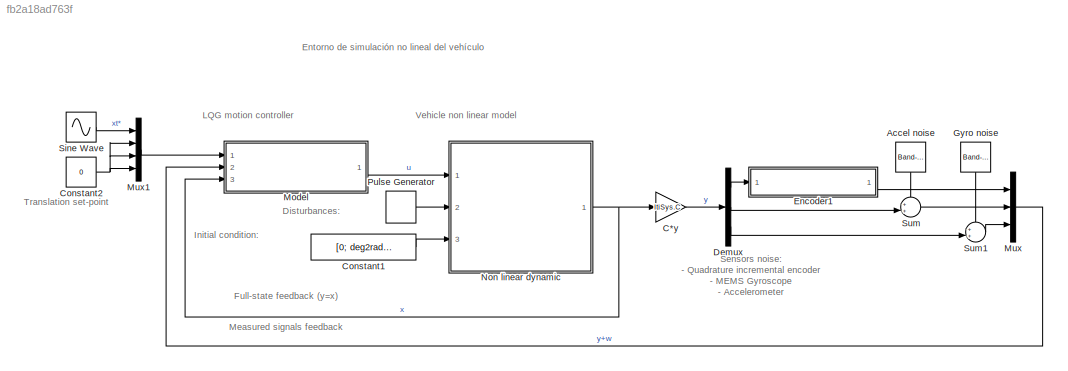
MODEL slx_fb2a18ad763f
KIND model
CONFIG AbsTol = auto
CONFIG EnableMultiTasking = off
CONFIG FixedStep = auto
CONFIG MaxStep = 1e-4
CONFIG MinStep = auto
CONFIG RelTol = 1e-3
CONFIG SampleTimeConstraint = Unconstrained
CONFIG SolverName = VariableStepAuto
CONFIG StartTime = 0.0
CONFIG StopTime = 16
BLOCK [Reference] Accel noise  REF=simulink/Sources/Band-Limited
White Noise
  NameLocation = top
  Ports = [0, 1]
  SourceBlock = simulink/Sources/Band-Limited\nWhite Noise
  SourceProductBaseCode = SL
  SourceType = Band-Limited White Noise.
BLOCK [Gain] C*y
  Gain = ltiSys.C
  Multiplication = Matrix(K*u)
BLOCK [Constant] Constant1
  Value = [0; deg2rad(0); 0; 0]
BLOCK [Constant] Constant2
  Value = 0
BLOCK [Demux] Demux
  Outputs = 3
  Ports = [1, 3]
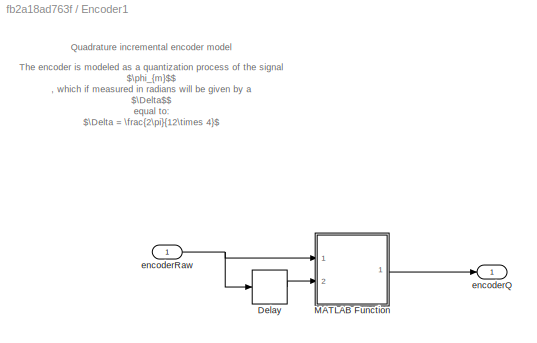
BLOCK [SubSystem] Encoder1
  NameLocation = top
  Ports = [1, 1]
  RequestExecContextInheritance = off
BLOCK [Delay] Encoder1/Delay
  DelayLength = 1
  InputPortMap = u0
  Ports = [1, 1]
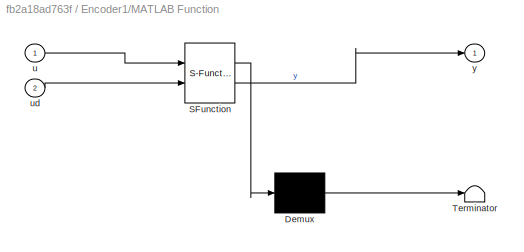
BLOCK [SubSystem] Encoder1/MATLAB Function
  ErrorFcn = Stateflow.Translate.translate
  PermitHierarchicalResolution = ExplicitOnly
  Ports = [2, 1]
  RequestExecContextInheritance = off
  SFBlockType = MATLAB Function
  TreatAsAtomicUnit = on
BLOCK [Demux] Encoder1/MATLAB Function/ Demux 
  Outputs = 1
  Ports = [1, 1]
BLOCK [S-Function] Encoder1/MATLAB Function/ SFunction 
  EnableBusSupport = on
  FunctionName = sf_sfun
  Parameters = QuadratureEncoder
  PortCounts = [2 2]
  Ports = [2, 2]
  SFcnIsStateOwnerBlock = off
  SFunctionDeploymentMode = off
  Tag = Stateflow S-Function 4
BLOCK [Terminator] Encoder1/MATLAB Function/ Terminator 
BLOCK [Inport] Encoder1/MATLAB Function/u
BLOCK [Inport] Encoder1/MATLAB Function/ud
  Port = 2
BLOCK [Outport] Encoder1/MATLAB Function/y
BLOCK [Outport] Encoder1/encoderQ
BLOCK [Inport] Encoder1/encoderRaw
BLOCK [Reference] Gyro noise  REF=simulink/Sources/Band-Limited
White Noise
  NameLocation = top
  Ports = [0, 1]
  SourceBlock = simulink/Sources/Band-Limited\nWhite Noise
  SourceProductBaseCode = SL
  SourceType = Band-Limited White Noise.
BLOCK [ModelReference] Model
  ModelNameDialog = MotionController.slx
  ModelReferenceVersion = 1.31
  Ports = [3, 1]
BLOCK [Mux] Mux
  DisplayOption = bar
  Inputs = 3
  Ports = [3, 1]
BLOCK [Mux] Mux1
  DisplayOption = bar
  Ports = [4, 1]
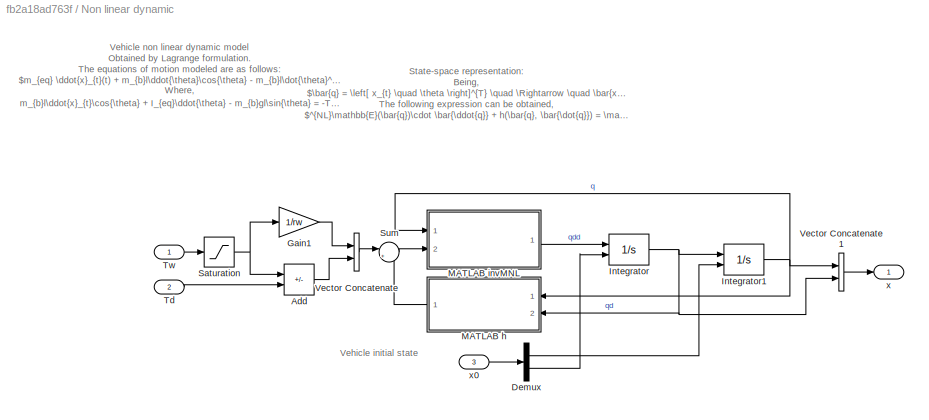
BLOCK [SubSystem] Non linear dynamic
  Ports = [3, 1]
  RequestExecContextInheritance = off
BLOCK [Sum] Non linear dynamic/Add
  IconShape = rectangular
  Inputs = -+
  Ports = [2, 1]
BLOCK [Demux] Non linear dynamic/Demux
  Outputs = 2
  Ports = [1, 2]
BLOCK [Gain] Non linear dynamic/Gain1
  Gain = 1/rw
BLOCK [Integrator] Non linear dynamic/Integrator
  InitialCondition = x0(3:4)
  InitialConditionSource = external
  Ports = [2, 1]
BLOCK [Integrator] Non linear dynamic/Integrator1
  InitialCondition = x0(1:2)
  InitialConditionSource = external
  Ports = [2, 1]
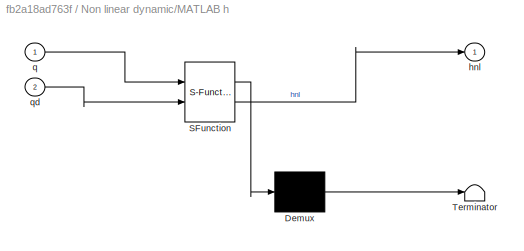
BLOCK [SubSystem] Non linear dynamic/MATLAB h
  ErrorFcn = Stateflow.Translate.translate
  PermitHierarchicalResolution = ExplicitOnly
  Ports = [2, 1]
  RequestExecContextInheritance = off
  SFBlockType = MATLAB Function
  TreatAsAtomicUnit = on
BLOCK [Demux] Non linear dynamic/MATLAB h/ Demux 
  Outputs = 1
  Ports = [1, 1]
BLOCK [S-Function] Non linear dynamic/MATLAB h/ SFunction 
  EnableBusSupport = on
  FunctionName = sf_sfun
  Parameters = bw,g,l,mb,rw
  PortCounts = [2 2]
  Ports = [2, 2]
  SFcnIsStateOwnerBlock = off
  SFunctionDeploymentMode = off
  Tag = Stateflow S-Function 2
BLOCK [Terminator] Non linear dynamic/MATLAB h/ Terminator 
BLOCK [Outport] Non linear dynamic/MATLAB h/hnl
BLOCK [Inport] Non linear dynamic/MATLAB h/q
BLOCK [Inport] Non linear dynamic/MATLAB h/qd
  Port = 2
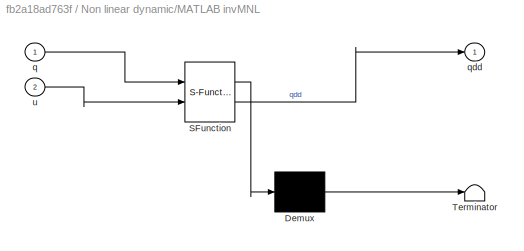
BLOCK [SubSystem] Non linear dynamic/MATLAB invMNL
  ErrorFcn = Stateflow.Translate.translate
  PermitHierarchicalResolution = ExplicitOnly
  Ports = [2, 1]
  RequestExecContextInheritance = off
  SFBlockType = MATLAB Function
  TreatAsAtomicUnit = on
BLOCK [Demux] Non linear dynamic/MATLAB invMNL/ Demux 
  Outputs = 1
  Ports = [1, 1]
BLOCK [S-Function] Non linear dynamic/MATLAB invMNL/ SFunction 
  EnableBusSupport = on
  FunctionName = sf_sfun
  Parameters = Ib,Iw,l,mb,mw,rw
  PortCounts = [2 2]
  Ports = [2, 2]
  SFcnIsStateOwnerBlock = off
  SFunctionDeploymentMode = off
  Tag = Stateflow S-Function 1
BLOCK [Terminator] Non linear dynamic/MATLAB invMNL/ Terminator 
BLOCK [Inport] Non linear dynamic/MATLAB invMNL/q
BLOCK [Outport] Non linear dynamic/MATLAB invMNL/qdd
BLOCK [Inport] Non linear dynamic/MATLAB invMNL/u
  Port = 2
BLOCK [Saturate] Non linear dynamic/Saturation
  LinearizeAsGain = off
  LowerLimit = -2*MotorParameters.maxTorque
  UpperLimit = 2*MotorParameters.maxTorque
BLOCK [Sum] Non linear dynamic/Sum
  Inputs = |+-
  Ports = [2, 1]
BLOCK [Inport] Non linear dynamic/Td
  Port = 2
BLOCK [Inport] Non linear dynamic/Tw
BLOCK [Concatenate] Non linear dynamic/Vector Concatenate
  Ports = [2, 1]
BLOCK [Concatenate] Non linear dynamic/Vector Concatenate1
  Ports = [2, 1]
BLOCK [Outport] Non linear dynamic/x
BLOCK [Inport] Non linear dynamic/x0
  Port = 3
  PortDimensions = [4, 1]
BLOCK [DiscretePulseGenerator] Pulse Generator
  Amplitude = 0
  Period = 20
  Ports = [0, 1]
  PulseType = Time based
  PulseWidth = 0.5
BLOCK [Sin] Sine Wave
  Amplitude = 0.5
  Frequency = 2*pi/15
  Ports = [0, 1]
  SampleTime = 0
BLOCK [Sum] Sum
  Inputs = ++|
  Ports = [2, 1]
BLOCK [Sum] Sum1
  Inputs = ++|
  Ports = [2, 1]
ANNOTATION (root): Disturbances :
ANNOTATION (root): Initial condition:
ANNOTATION (root): LQG motion controller
ANNOTATION (root): Sensors noise: - Quadrature incremental encoder - MEMS Gyroscope - Accelerometer
ANNOTATION (root): Translation set-point
ANNOTATION (root): Vehicle non linear model
ANNOTATION (root): Entorno de simulación no lineal del vehículo
ANNOTATION (root): Full-state feedback (y=x)
ANNOTATION (root): Measured signals feedback
ANNOTATION Encoder1: Quadrature incremental encoder model
ANNOTATION Encoder1: The encoder is modeled as a quantization process of the signal $\phi_{m}$$ , which if measured in radians will be given by a $\Delta$$ equal to: $\Delta = \frac{2\pi}{12\times 4}$ The following quantization function Q is proposed: $Q(\phi_{m}) = \begin{cases} \Delta \cdot \lceil \frac{\phi_{m}}{\Delta} \rceil & \quad \text{si } \dot{\phi}_{m} < 0 \\ \phi_{m} & \quad \text{si } \dot{\phi}_{m} = 0 \...<+105ch>
ANNOTATION Non linear dynamic: Vehicle initial state
ANNOTATION Non linear dynamic: Vehicle non linear dynamic model Obtained by Lagrange formulation. The equations of motion modeled are as follows: $m_{eq} \ddot{x}_{t}(t) + m_{b}l\ddot{\theta}\cos{\theta} - m_{b}l\dot{\theta}^{2}\sin{\theta} + \frac{2b_{w}}{r_{w}^{2}}\dot{x}_{t} = \frac{1}{r_{w}}T_{w}\\ m_{b}l\ddot{x}_{t}\cos{\theta} + I_{eq}\ddot{\theta} - m_{b}gl\sin{\theta} = -T_{w} + T_{d}$ Where, $m_{eq} = m_{b} + 2m_{w} + ...<+64ch>
ANNOTATION Non linear dynamic: State-space representation: Being, $\bar{q} = \left[ x_{t} \quad \theta \right]^{T} \quad \Rightarrow \quad \bar{x} = \left[ \bar{q} \quad \bar{\dot{q}} \right]^{T} = \left[ x_{t} \quad \theta \quad \dot{x}_{t} \quad \dot{\theta} \right]^{T}$ The following expression can be obtained, $^{NL}\mathbb{E}(\bar{q})\cdot \bar{\ddot{q}} + h(\bar{q}, \bar{\dot{q}}) = \mathbb{H}_{T} \cdot \bar{u}$
LINE Accel noise:1 -> Sum:1
LINE C*y:1 -> Demux:1
LINE Constant1:1 -> Non linear dynamic:3
NET Constant2:1 -> Mux1:2, Mux1:3, Mux1:4
LINE Demux:1 -> Encoder1:1
LINE Demux:2 -> Sum:2
LINE Demux:3 -> Sum1:2
LINE Encoder1/Delay:1 -> Encoder1/MATLAB Function:2
LINE Encoder1/MATLAB Function:1 -> Encoder1/encoderQ:1
NET Encoder1/encoderRaw:1 -> Encoder1/Delay:1, Encoder1/MATLAB Function:1
LINE Encoder1:1 -> Mux:1
LINE Gyro noise:1 -> Sum1:1
LINE Model:1 -> Non linear dynamic:1
LINE Mux1:1 -> Model:1
LINE Mux:1 -> Model:2
LINE Non linear dynamic/Add:1 -> Non linear dynamic/Vector Concatenate:2
LINE Non linear dynamic/Demux:1 -> Non linear dynamic/Integrator1:2
LINE Non linear dynamic/Demux:2 -> Non linear dynamic/Integrator:2
LINE Non linear dynamic/Gain1:1 -> Non linear dynamic/Vector Concatenate:1
NET Non linear dynamic/Integrator1:1 -> Non linear dynamic/MATLAB h:1, Non linear dynamic/MATLAB invMNL:1, Non linear dynamic/Vector Concatenate1:1
NET Non linear dynamic/Integrator:1 -> Non linear dynamic/Integrator1:1, Non linear dynamic/MATLAB h:2, Non linear dynamic/Vector Concatenate1:2
LINE Non linear dynamic/MATLAB h:1 -> Non linear dynamic/Sum:2
LINE Non linear dynamic/MATLAB invMNL:1 -> Non linear dynamic/Integrator:1
NET Non linear dynamic/Saturation:1 -> Non linear dynamic/Add:1, Non linear dynamic/Gain1:1
LINE Non linear dynamic/Sum:1 -> Non linear dynamic/MATLAB invMNL:2
LINE Non linear dynamic/Td:1 -> Non linear dynamic/Add:2
LINE Non linear dynamic/Tw:1 -> Non linear dynamic/Saturation:1
LINE Non linear dynamic/Vector Concatenate1:1 -> Non linear dynamic/x:1
LINE Non linear dynamic/Vector Concatenate:1 -> Non linear dynamic/Sum:1
LINE Non linear dynamic/x0:1 -> Non linear dynamic/Demux:1
NET Non linear dynamic:1 -> C*y:1, Model:3
LINE Pulse Generator:1 -> Non linear dynamic:2
LINE Sine Wave:1 -> Mux1:1
LINE Sum1:1 -> Mux:3
LINE Sum:1 -> Mux:2
note: NET lines group one-source signal fan-out (src -> all destinations, sorted); 1:1 wires keep LINE
CHART Non linear dynamic/MATLAB invMNL states=1 transitions=1
  STATE_LABEL 'eML_blk_kernel()'
  STATE_LABEL 'SCRIPT:\nfunction qdd = invENL(q, u, mw, Iw, rw, mb, l, Ib)\nENL = [\n    2*mw + 2*Iw/rw^2 + mb,  mb*l*cos(q(2));\n    mb*l*cos(q(2)),         Ib + mb*l^2\n];\nqdd = ENL\\u; % inv(MNL)*u'
CHART Non linear dynamic/MATLAB h states=1 transitions=1
  STATE_LABEL 'eML_blk_kernel()'
  STATE_LABEL 'SCRIPT:\nfunction hnl = h(q, qd, bw, rw, mb, l, g)\nhnl = [\n    2*bw/rw^2*qd(1) - mb*l*qd(2)^2*sin(q(2));\n    -mb*g*l*sin(q(2))\n];\n'
CHART Encoder1/MATLAB Function states=1 transitions=1
  STATE_LABEL 'eML_blk_kernel()'
  STATE_LABEL 'SCRIPT:\nfunction y = Q(u, ud, QuadratureEncoder)\ndelta = 2*pi/(QuadratureEncoder.PPR*QuadratureEncoder.ResolutionMult);\ny = u/delta;\ndiff = u - ud;\nif diff < 0\n    y = ceil(y);\nelseif diff > 0\n    y = floor(y);\nend\ny = y*delta;\n'
CHART  states=0 transitions=0
CHART  states=0 transitions=0
CHART  states=0 transitions=0
